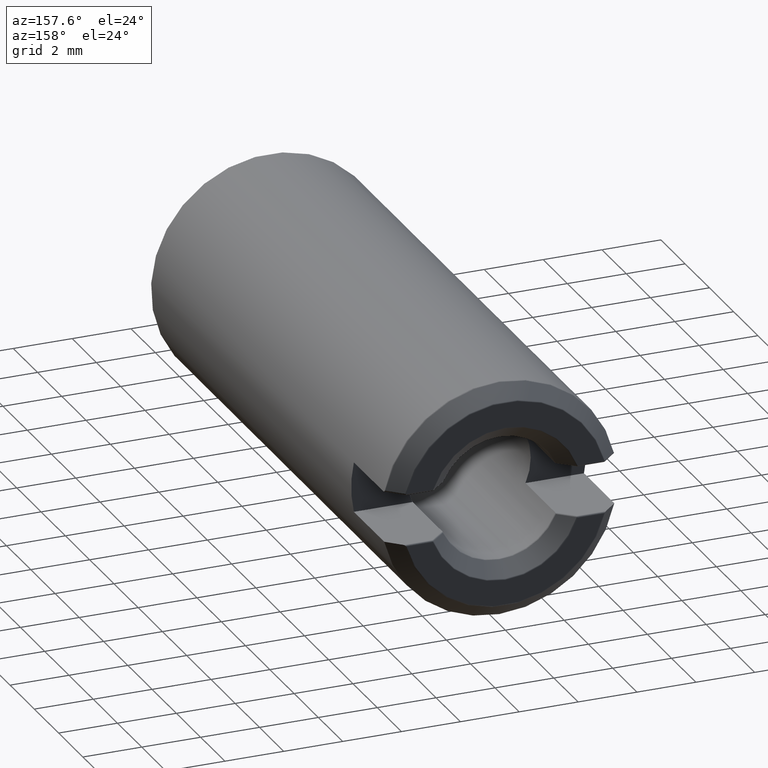
[diagram: clean part render]
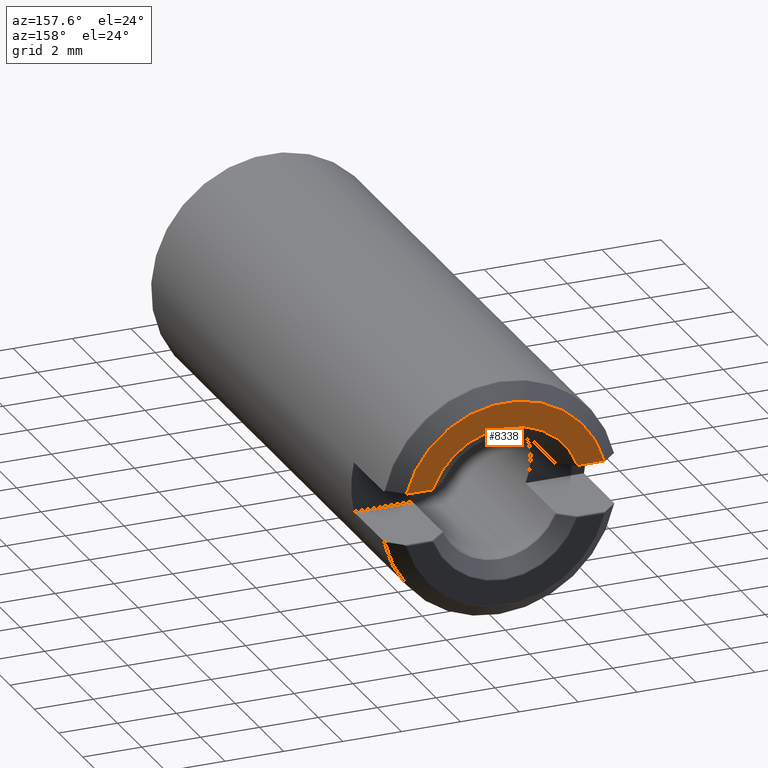
[diagram: same view with one face highlighted and labeled with its STEP entity id]
A machine part, auxiliary view. The second image highlights one B-rep face of the part: STEP entity #8338.
In plain terms, the highlighted planar face has unit normal (0, 1, 0).
Its self-contained STEP definition (entity closure, byte-faithful):
#47 = LINE ( 'NONE', #7853, #9909 ) ;
#157 = ORIENTED_EDGE ( 'NONE', *, *, #14421, .T. ) ;
#245 = DIRECTION ( 'NONE',  ( -1.000000000000000000, -0.0000000000000000000, 1.214306433183765000E-016 ) ) ;
#406 = CARTESIAN_POINT ( 'NONE',  ( 0.0000000000000000000, 20.00000000000000000, 0.0000000000000000000 ) ) ;
#918 = VECTOR ( 'NONE', #14851, 1000.000000000000000 ) ;
#1627 = CARTESIAN_POINT ( 'NONE',  ( -3.395217224272986100, 20.00000000000000000, 0.9000000000000003600 ) ) ;
#2229 = CARTESIAN_POINT ( 'NONE',  ( 2.461325752192335100, 20.00000000000000000, 0.8999999999999996900 ) ) ;
#3125 = CARTESIAN_POINT ( 'NONE',  ( -3.360871045630510400, 20.00000000000000000, 0.9000000000000003600 ) ) ;
#3266 = AXIS2_PLACEMENT_3D ( 'NONE', #406, #5761, #11016 ) ;
#3514 = DIRECTION ( 'NONE',  ( 0.0000000000000000000, -0.0000000000000000000, 1.000000000000000000 ) ) ;
#3564 = LINE ( 'NONE', #1627, #918 ) ;
#4364 = ORIENTED_EDGE ( 'NONE', *, *, #12760, .T. ) ;
#4801 = ORIENTED_EDGE ( 'NONE', *, *, #8779, .T. ) ;
#5139 = CIRCLE ( 'NONE', #3266, 2.620710678118657100 ) ;
#5546 = CIRCLE ( 'NONE', #13409, 3.479289321881340800 ) ;
#5761 = DIRECTION ( 'NONE',  ( -0.0000000000000000000, -1.000000000000000000, -0.0000000000000000000 ) ) ;
#7420 = ORIENTED_EDGE ( 'NONE', *, *, #10544, .T. ) ;
#7853 = CARTESIAN_POINT ( 'NONE',  ( 2.457132475061128300, 20.00000000000000000, 0.8999999999999996900 ) ) ;
#8338 = ADVANCED_FACE ( 'NONE', ( #11749 ), #11401, .T. ) ;
#8779 = EDGE_CURVE ( 'NONE', #16926, #16391, #5546, .T. ) ;
#9085 = VERTEX_POINT ( 'NONE', #2229 ) ;
#9563 = EDGE_LOOP ( 'NONE', ( #4364, #4801, #157, #7420 ) ) ;
#9773 = DIRECTION ( 'NONE',  ( 0.0000000000000000000, 1.000000000000000000, 0.0000000000000000000 ) ) ;
#9909 = VECTOR ( 'NONE', #245, 1000.000000000000000 ) ;
#10544 = EDGE_CURVE ( 'NONE', #9085, #15175, #5139, .T. ) ;
#11016 = DIRECTION ( 'NONE',  ( 0.0000000000000000000, 0.0000000000000000000, 1.000000000000000000 ) ) ;
#11090 = DIRECTION ( 'NONE',  ( 0.0000000000000000000, 0.0000000000000000000, 1.000000000000000000 ) ) ;
#11401 = PLANE ( 'NONE',  #15383 ) ;
#11749 = FACE_OUTER_BOUND ( 'NONE', #9563, .T. ) ;
#12187 = CARTESIAN_POINT ( 'NONE',  ( 3.360871045630510400, 20.00000000000000000, 0.8999999999999995800 ) ) ;
#12403 = CARTESIAN_POINT ( 'NONE',  ( 0.0000000000000000000, 20.00000000000000000, 0.0000000000000000000 ) ) ;
#12760 = EDGE_CURVE ( 'NONE', #15175, #16926, #3564, .T. ) ;
#13409 = AXIS2_PLACEMENT_3D ( 'NONE', #12403, #9773, #11090 ) ;
#13870 = CARTESIAN_POINT ( 'NONE',  ( -2.461325752192334600, 20.00000000000000000, 0.8999999999999940300 ) ) ;
#13880 = CARTESIAN_POINT ( 'NONE',  ( 0.0000000000000000000, 20.00000000000000000, 0.0000000000000000000 ) ) ;
#14421 = EDGE_CURVE ( 'NONE', #16391, #9085, #47, .T. ) ;
#14851 = DIRECTION ( 'NONE',  ( -1.000000000000000000, -0.0000000000000000000, 1.214306433183765000E-016 ) ) ;
#15175 = VERTEX_POINT ( 'NONE', #13870 ) ;
#15383 = AXIS2_PLACEMENT_3D ( 'NONE', #13880, #16663, #3514 ) ;
#16391 = VERTEX_POINT ( 'NONE', #12187 ) ;
#16663 = DIRECTION ( 'NONE',  ( 0.0000000000000000000, 1.000000000000000000, 0.0000000000000000000 ) ) ;
#16926 = VERTEX_POINT ( 'NONE', #3125 ) ;